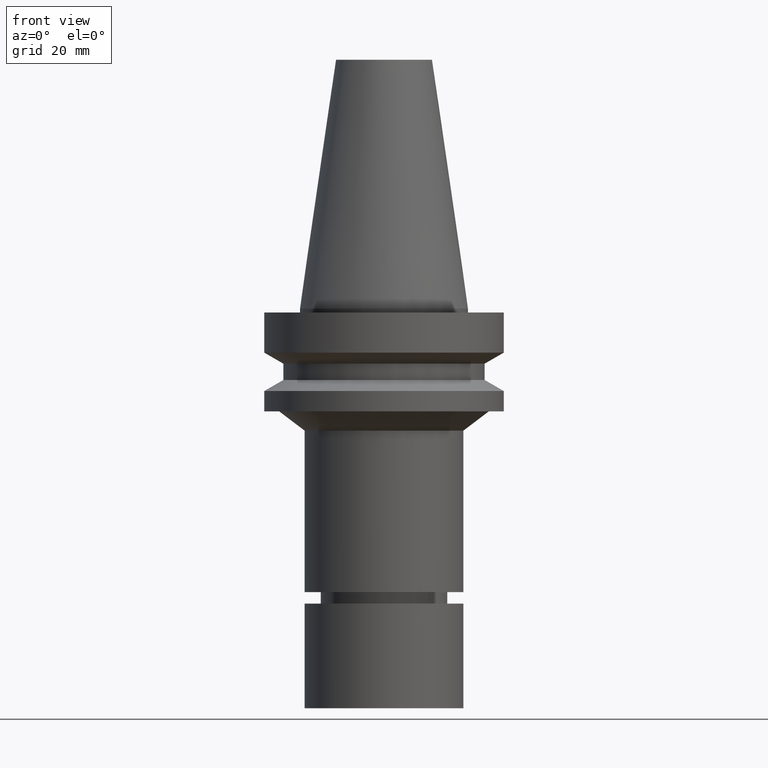
[diagram: clean part render]
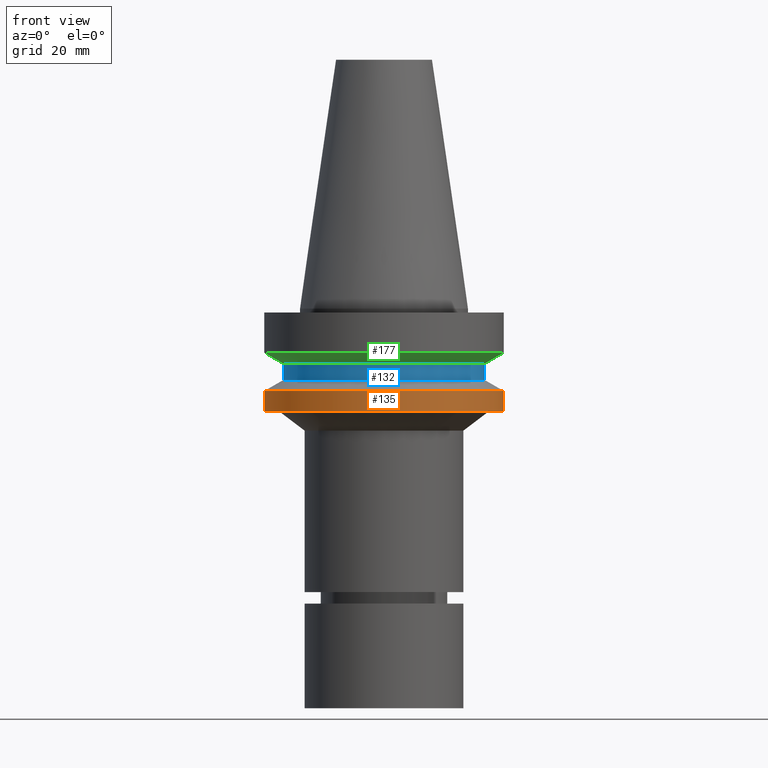
[diagram: same view with three faces highlighted in distinct colors, each labeled with its STEP entity id]
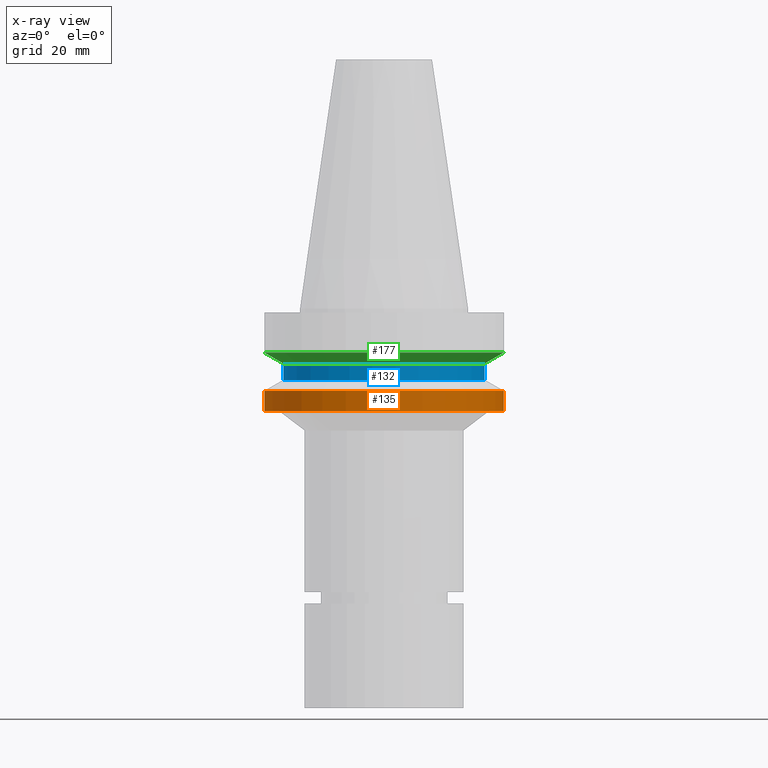
[diagram: x-ray of the same camera — body ghosted, the three highlighted faces saturated]
A machine part, front view with three faces highlighted in distinct colors.
The next image is the same camera in x-ray (body ghosted, the three faces saturated) — at least one of them is partly hidden behind the body in this view.
Their STEP definitions:

[orange] entity #135 — the highlighted cylindrical surface (bore or boss wall) has radius 31.5 mm, axis along (0, -0, -1).
#102=EDGE_CURVE('Unnamed[1]',#240,#240,#241,.T.);
#135=ADVANCED_FACE('Unnamed[1]',(#291,#292),#293,.T.);
#164=EDGE_CURVE('Unnamed[1]',#338,#338,#339,.T.);
#240=VERTEX_POINT('',#425);
#241=CIRCLE('',#426,31.5000000000003);
#291=FACE_BOUND('',#489,.T.);
#292=FACE_BOUND('',#490,.T.);
#293=CYLINDRICAL_SURFACE('',#491,31.5000000000005);
#338=VERTEX_POINT('',#548);
#339=CIRCLE('',#549,31.5000000000006);
#425=CARTESIAN_POINT('',(1.65327317884891E-015,31.5000000000004,-26.9999999999998));
#426=AXIS2_PLACEMENT_3D('',#623,#624,#625);
#489=EDGE_LOOP('',(#680));
#490=EDGE_LOOP('',(#681));
#491=AXIS2_PLACEMENT_3D('',#682,#683,#684);
#548=CARTESIAN_POINT('',(1.32473071268174E-015,31.5000000000007,-21.6344943473346));
#549=AXIS2_PLACEMENT_3D('',#733,#734,#735);
#623=CARTESIAN_POINT('',(1.65327317884891E-015,6.49480099882418E-014,-26.9999999999998));
#624=DIRECTION('',(6.12323399573677E-017,-1.30838707338546E-016,-1.0));
#625=DIRECTION('',(3.18440747656793E-033,1.0,-1.30838707338546E-016));
#680=ORIENTED_EDGE('',*,*,#102,.F.);
#681=ORIENTED_EDGE('',*,*,#164,.T.);
#682=CARTESIAN_POINT('',(1.48900194576533E-015,6.52990179001479E-014,-24.3172471736672));
#683=DIRECTION('',(6.12323399573677E-017,-1.30838707338546E-016,-1.0));
#684=DIRECTION('',(3.18440747656792E-033,1.0,-1.30838707338546E-016));
#733=CARTESIAN_POINT('',(1.32473071268174E-015,6.56500258120541E-014,-21.6344943473346));
#734=DIRECTION('',(6.12323399573677E-017,-1.30838707338545E-016,-1.0));
#735=DIRECTION('',(3.1844074765679E-033,1.0,-1.30838707338545E-016));

[blue] entity #132 — the highlighted cylindrical surface (bore or boss wall) has radius 26.5 mm, axis along (0, -0, -1).
#78=EDGE_CURVE('Unnamed[1]',#204,#204,#205,.T.);
#104=EDGE_CURVE('Unnamed[1]',#243,#243,#244,.T.);
#132=ADVANCED_FACE('Unnamed[1]',(#286,#287),#288,.T.);
#204=VERTEX_POINT('',#380);
#205=CIRCLE('',#381,26.5);
#243=VERTEX_POINT('',#429);
#244=CIRCLE('',#430,26.4999999999994);
#286=FACE_BOUND('',#483,.T.);
#287=FACE_BOUND('',#484,.T.);
#288=CYLINDRICAL_SURFACE('',#485,26.4999999999997);
#380=CARTESIAN_POINT('',(1.1479681728942E-015,26.5,-18.7477430013855));
#381=AXIS2_PLACEMENT_3D('',#581,#582,#583);
#429=CARTESIAN_POINT('',(8.8494551369045E-016,26.4999999999995,-14.4522569986152));
#430=AXIS2_PLACEMENT_3D('',#626,#627,#628);
#483=EDGE_LOOP('',(#674));
#484=EDGE_LOOP('',(#675));
#485=AXIS2_PLACEMENT_3D('',#676,#677,#678);
#581=CARTESIAN_POINT('',(1.1479681728942E-015,6.60277246265659E-014,-18.7477430013855));
#582=DIRECTION('',(6.12323399573677E-017,-1.30838707338598E-016,-1.0));
#583=DIRECTION('',(3.18440747656829E-033,1.0,-1.30838707338598E-016));
#626=CARTESIAN_POINT('',(8.8494551369045E-016,6.65897404625591E-014,-14.4522569986152));
#627=DIRECTION('',(6.12323399573677E-017,-1.30838707338601E-016,-1.0));
#628=DIRECTION('',(3.18440747656836E-033,1.0,-1.30838707338601E-016));
#674=ORIENTED_EDGE('',*,*,#78,.F.);
#675=ORIENTED_EDGE('',*,*,#104,.T.);
#676=CARTESIAN_POINT('',(1.01645684329232E-015,6.63087325445625E-014,-16.6000000000004));
#677=DIRECTION('',(6.12323399573676E-017,-1.308387073386E-016,-1.0));
#678=DIRECTION('',(3.18440747656833E-033,1.0,-1.308387073386E-016));

[green] entity #177 — the highlighted conical surface has half-angle 60 deg.
#104=EDGE_CURVE('Unnamed[1]',#243,#243,#244,.T.);
#158=EDGE_CURVE('Unnamed[1]',#329,#329,#330,.T.);
#177=ADVANCED_FACE('Unnamed[1]',(#356,#357),#358,.T.);
#243=VERTEX_POINT('',#429);
#244=CIRCLE('',#430,26.4999999999994);
#329=VERTEX_POINT('',#536);
#330=CIRCLE('',#537,31.5000000000003);
#356=FACE_BOUND('',#570,.T.);
#357=FACE_BOUND('',#571,.T.);
#358=CONICAL_SURFACE('',#572,28.9999999999999,1.04719755119657);
#429=CARTESIAN_POINT('',(8.8494551369045E-016,26.4999999999995,-14.4522569986152));
#430=AXIS2_PLACEMENT_3D('',#626,#627,#628);
#536=CARTESIAN_POINT('',(7.08182973902924E-016,31.5000000000004,-11.5655056526664));
#537=AXIS2_PLACEMENT_3D('',#724,#725,#726);
#570=EDGE_LOOP('',(#750));
#571=EDGE_LOOP('',(#751));
#572=AXIS2_PLACEMENT_3D('',#752,#753,#754);
#626=CARTESIAN_POINT('',(8.8494551369045E-016,6.65897404625591E-014,-14.4522569986152));
#627=DIRECTION('',(6.12323399573677E-017,-1.30838707338601E-016,-1.0));
#628=DIRECTION('',(3.18440747656836E-033,1.0,-1.30838707338601E-016));
#724=CARTESIAN_POINT('',(7.08182973902923E-016,6.69674392770709E-014,-11.5655056526663));
#725=DIRECTION('',(6.12323399573677E-017,-1.30838707338546E-016,-1.0));
#726=DIRECTION('',(3.18440747657363E-033,1.0,-1.30838707338546E-016));
#750=ORIENTED_EDGE('',*,*,#104,.F.);
#751=ORIENTED_EDGE('',*,*,#158,.T.);
#752=CARTESIAN_POINT('',(7.96564243796687E-016,6.6778589869815E-014,-13.0088813256408));
#753=DIRECTION('',(-6.12323399573677E-017,1.30838707338571E-016,1.0));
#754=DIRECTION('',(3.18440747657122E-033,1.0,-1.30838707338571E-016));